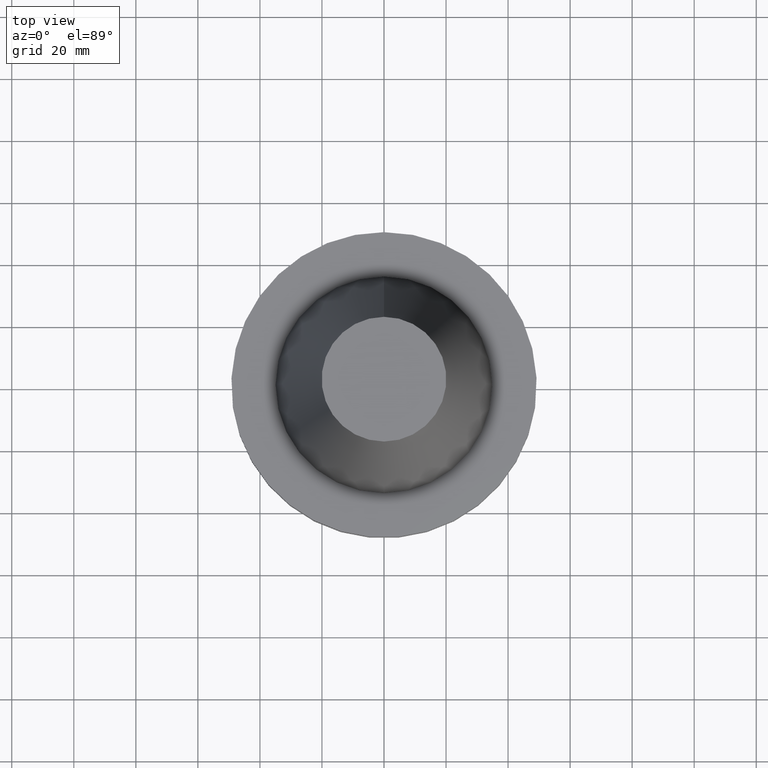
[diagram: clean part render]
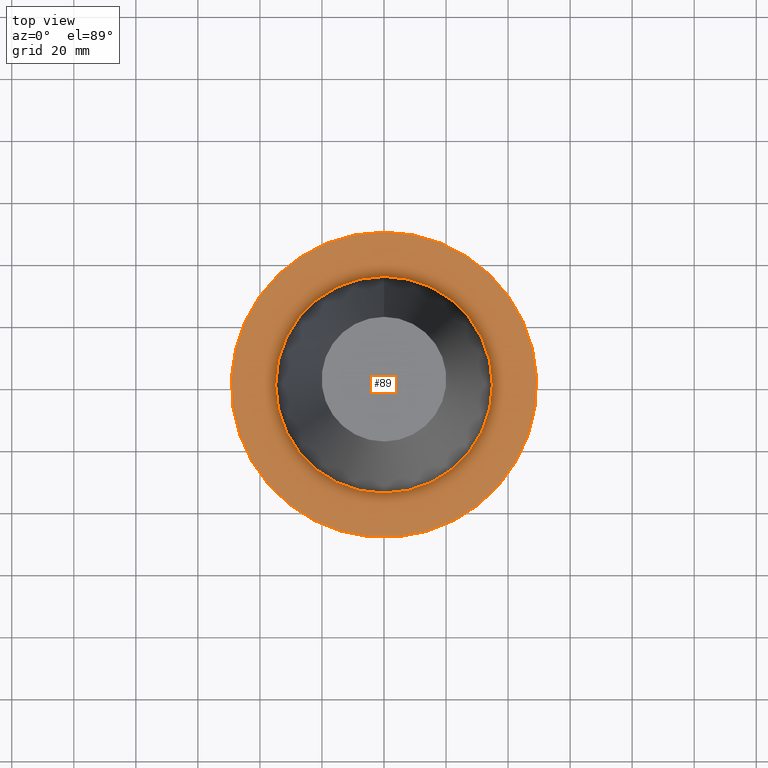
[diagram: same view with one face highlighted and labeled with its STEP entity id]
A machine part, top view. The second image highlights one B-rep face of the part: STEP entity #89.
In plain terms, the highlighted planar face has unit normal (-0, -0, 1).
Its self-contained STEP definition (entity closure, byte-faithful):
#78=EDGE_CURVE('Unnamed[1]',#187,#187,#188,.T.);
#89=ADVANCED_FACE('Unnamed[1]',(#202,#203),#204,.T.);
#102=EDGE_CURVE('Unnamed[1]',#224,#224,#225,.T.);
#187=VERTEX_POINT('',#329);
#188=CIRCLE('',#330,49.2125);
#202=FACE_OUTER_BOUND('',#347,.T.);
#203=FACE_BOUND('',#348,.T.);
#204=PLANE('',#349);
#224=VERTEX_POINT('',#374);
#225=CIRCLE('',#375,34.925);
#329=CARTESIAN_POINT('',(9.18485099360509E-017,49.2125,-1.49999999999999));
#330=AXIS2_PLACEMENT_3D('',#480,#481,#482);
#347=EDGE_LOOP('',(#494));
#348=EDGE_LOOP('',(#495));
#349=AXIS2_PLACEMENT_3D('',#496,#497,#498);
#374=CARTESIAN_POINT('',(9.18485099360511E-017,34.925,-1.5));
#375=AXIS2_PLACEMENT_3D('',#520,#521,#522);
#480=CARTESIAN_POINT('',(9.18485099360515E-017,1.83697019872103E-016,-1.5));
#481=DIRECTION('',(6.12323399573677E-017,1.22464679914735E-016,-1.0));
#482=DIRECTION('',(-1.23259516440783E-032,1.0,1.22464679914735E-016));
#494=ORIENTED_EDGE('',*,*,#78,.F.);
#495=ORIENTED_EDGE('',*,*,#102,.T.);
#496=CARTESIAN_POINT('',(9.1848509936051E-017,42.06875,-1.49999999999999));
#497=DIRECTION('',(-6.12323399573677E-017,-1.22464679914735E-016,1.0));
#498=DIRECTION('',(1.23259516440783E-032,-1.0,-1.22464679914735E-016));
#520=CARTESIAN_POINT('',(9.18485099360515E-017,1.83697019872103E-016,-1.5));
#521=DIRECTION('',(6.12323399573677E-017,1.22464679914735E-016,-1.0));
#522=DIRECTION('',(-1.23259516440783E-032,1.0,1.22464679914735E-016));